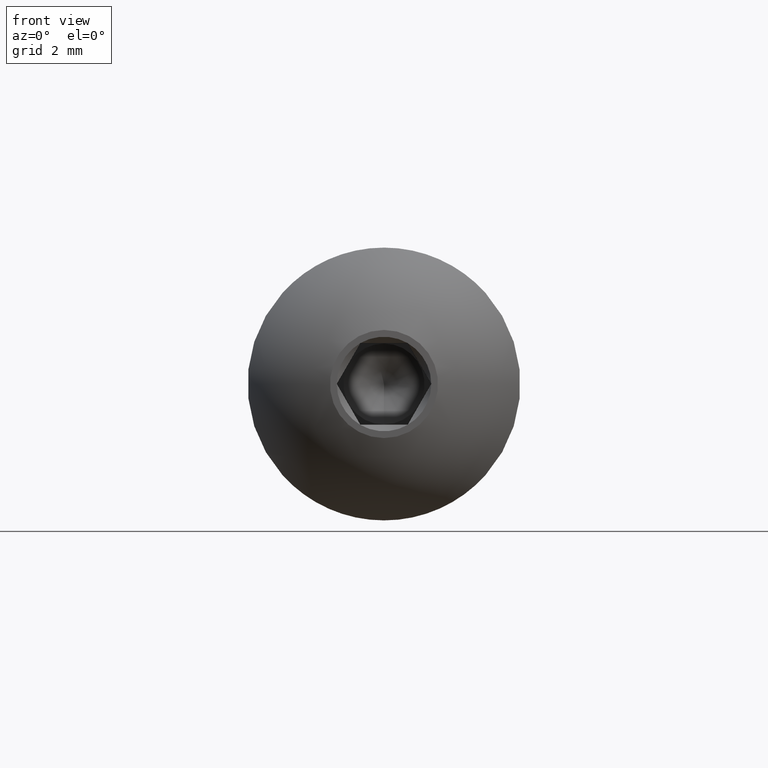
[diagram: clean part render]
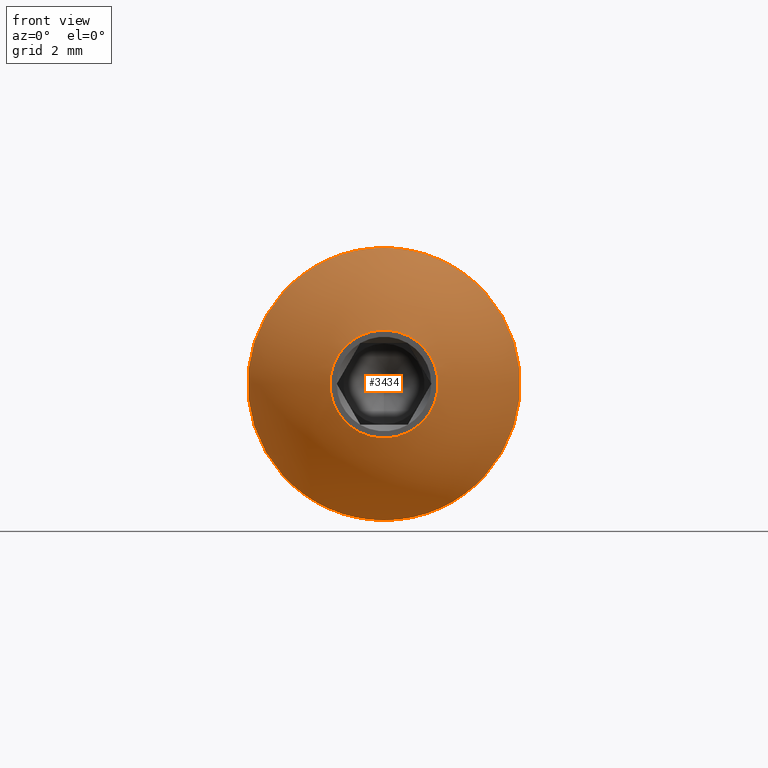
[diagram: same view with one face highlighted and labeled with its STEP entity id]
A machine part, front view. The second image highlights one B-rep face of the part: STEP entity #3434.
In plain terms, the highlighted spherical surface has radius 5.7585 mm.
Its self-contained STEP definition (entity closure, byte-faithful):
#676 = CARTESIAN_POINT ( 'NONE',  ( 0.0000000000000000000, 0.0000000000000000000, 0.0000000000000000000 ) ) ;
#1119 = VERTEX_POINT ( 'NONE', #15865 ) ;
#1362 = FACE_OUTER_BOUND ( 'NONE', #12978, .T. ) ;
#2329 = DIRECTION ( 'NONE',  ( 1.000000000000000000, 0.0000000000000000000, 0.0000000000000000000 ) ) ;
#2446 = VERTEX_POINT ( 'NONE', #9890 ) ;
#2550 = AXIS2_PLACEMENT_3D ( 'NONE', #12934, #5454, #14117 ) ;
#2893 = CIRCLE ( 'NONE', #15701, 1.982050807568877600 ) ;
#3304 = ORIENTED_EDGE ( 'NONE', *, *, #11420, .T. ) ;
#3434 = ADVANCED_FACE ( 'NONE', ( #10645, #1362 ), #7352, .T. ) ;
#3782 = ORIENTED_EDGE ( 'NONE', *, *, #4165, .F. ) ;
#4165 = EDGE_CURVE ( 'NONE', #1119, #1119, #2893, .T. ) ;
#4908 = CARTESIAN_POINT ( 'NONE',  ( 0.0000000000000000000, 5.406661685532464300, 0.0000000000000000000 ) ) ;
#5454 = DIRECTION ( 'NONE',  ( -0.0000000000000000000, -1.000000000000000000, -0.0000000000000000000 ) ) ;
#5574 = DIRECTION ( 'NONE',  ( -0.0000000000000000000, -1.000000000000000000, -0.0000000000000000000 ) ) ;
#7352 = SPHERICAL_SURFACE ( 'NONE', #12379, 5.758516821681533700 ) ;
#8761 = EDGE_LOOP ( 'NONE', ( #3304 ) ) ;
#9857 = CIRCLE ( 'NONE', #2550, 5.000000000000000900 ) ;
#9890 = CARTESIAN_POINT ( 'NONE',  ( 0.0000000000000000000, 2.550000000000000300, -5.000000000000000900 ) ) ;
#10428 = DIRECTION ( 'NONE',  ( 0.0000000000000000000, 0.0000000000000000000, -1.000000000000000000 ) ) ;
#10645 = FACE_OUTER_BOUND ( 'NONE', #8761, .T. ) ;
#11420 = EDGE_CURVE ( 'NONE', #2446, #2446, #9857, .T. ) ;
#12379 = AXIS2_PLACEMENT_3D ( 'NONE', #4908, #14771, #2329 ) ;
#12934 = CARTESIAN_POINT ( 'NONE',  ( 0.0000000000000000000, 2.550000000000000300, 0.0000000000000000000 ) ) ;
#12978 = EDGE_LOOP ( 'NONE', ( #3782 ) ) ;
#14117 = DIRECTION ( 'NONE',  ( 0.0000000000000000000, 0.0000000000000000000, -1.000000000000000000 ) ) ;
#14771 = DIRECTION ( 'NONE',  ( 0.0000000000000000000, 0.0000000000000000000, 1.000000000000000000 ) ) ;
#15701 = AXIS2_PLACEMENT_3D ( 'NONE', #676, #5574, #10428 ) ;
#15865 = CARTESIAN_POINT ( 'NONE',  ( 0.0000000000000000000, 0.0000000000000000000, -1.982050807568877600 ) ) ;